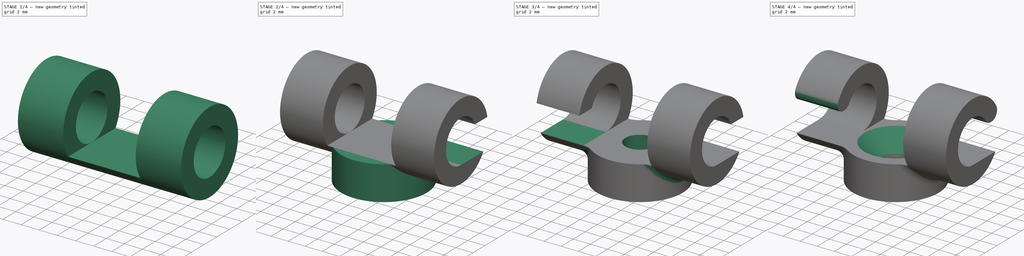
[diagram: build sequence overview — one tinted view per stage of 4, left to right]
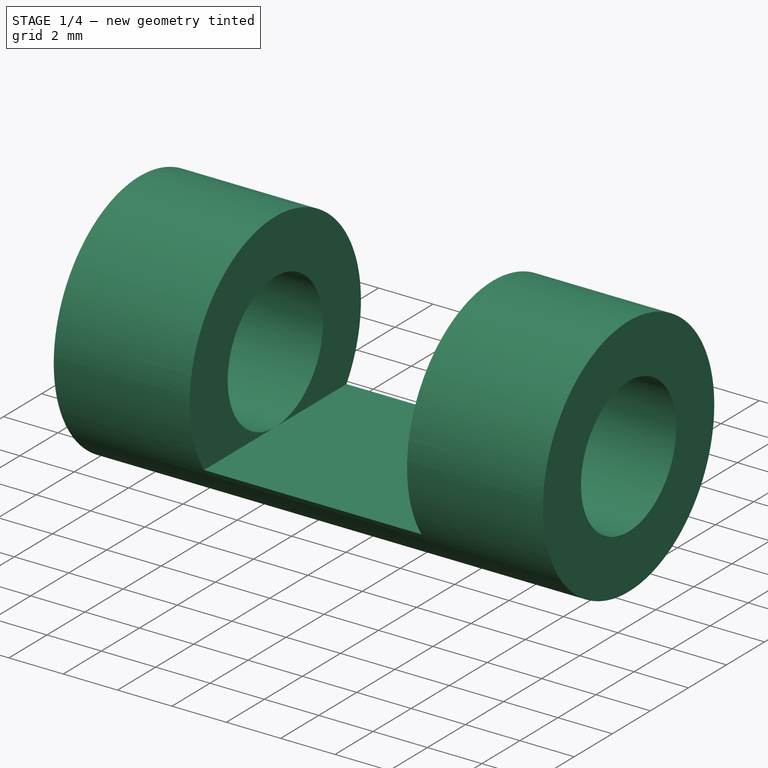
[diagram: stage 1 of 4 — iso view after this stage's code; geometry added in this stage tinted green]
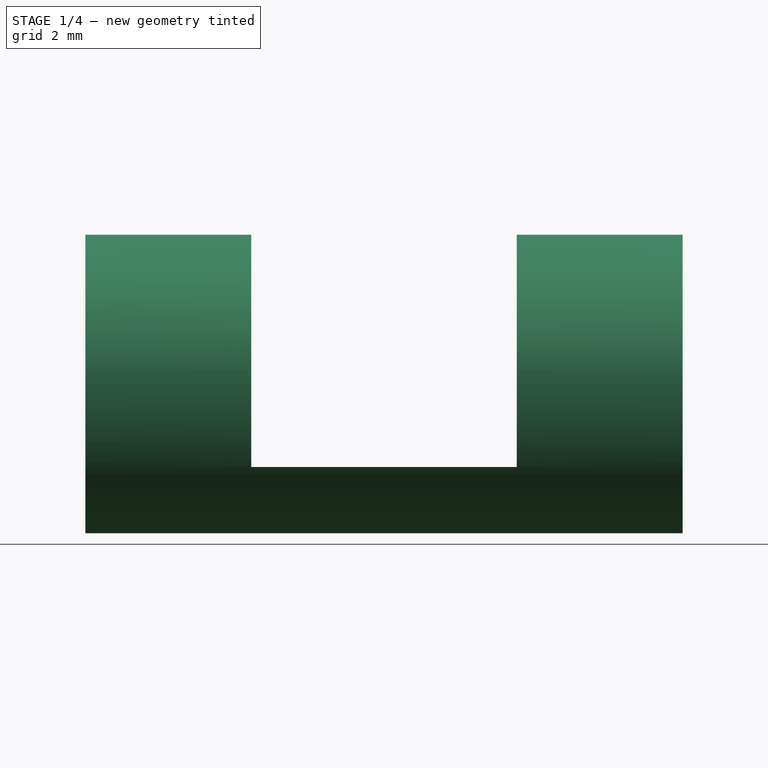
[diagram: stage 1 of 4 — front view after this stage's code; geometry added in this stage tinted green]
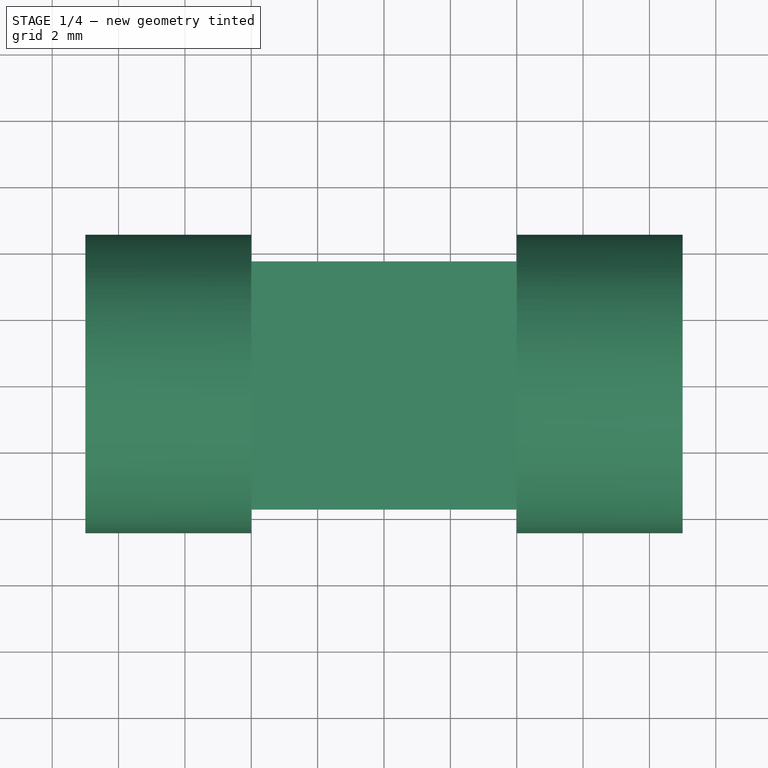
[diagram: stage 1 of 4 — top view after this stage's code; geometry added in this stage tinted green]
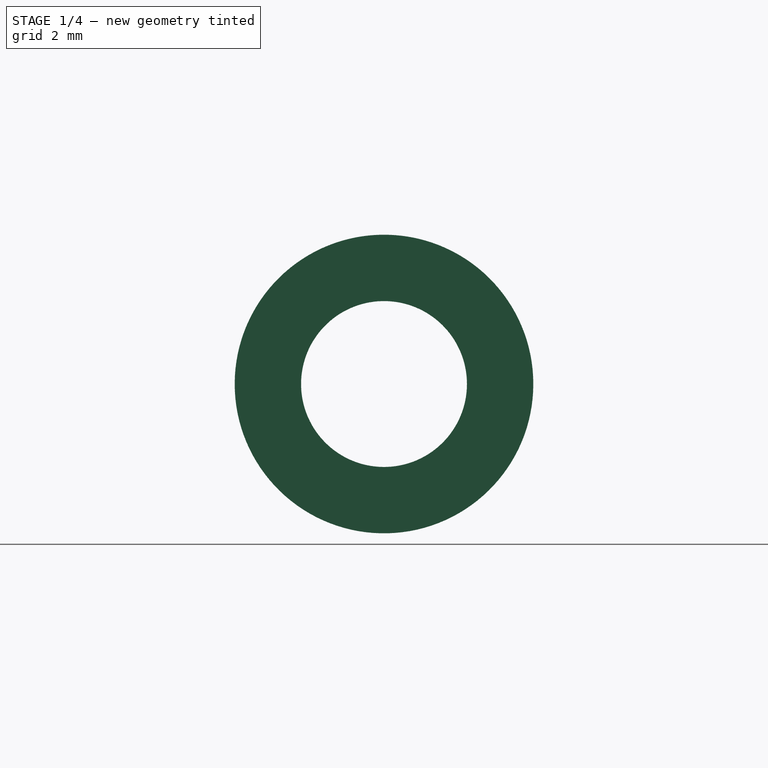
[diagram: stage 1 of 4 — right view after this stage's code; geometry added in this stage tinted green]
FCSTD DOCUMENT  (FreeCAD 0.17R13519 (Git))
Label: Schlauchhalter
License: All rights reserved
LicenseURL: http://en.wikipedia.org/wiki/All_rights_reserved
objects: Sketcher::SketchObject×5, PartDesign::Pocket×3, PartDesign::Pad×2, PartDesign::Fillet×2, Spreadsheet::Sheet×1, PartDesign::PolarPattern×1, PartDesign::Chamfer×1, PartDesign::Body×1, App::Part×1
note: 20 computed .brp shape members not serialized (recipe doc carries the construction recipe); baked Part::Feature solids carry a one-line shape summary decoded from their .brp

FEATURE [Spreadsheet::Sheet] Spreadsheet
  cells = A1(Materialdicke)=2; D1=Materialdicke; A2=5; B2(ARSchlauch)==A2 / 2; D2=Außenradius Schlauch; A3(Sockelhoehe)=4; D3=Sockelhöhe; A4(Mittenabstand)=8; D4=Mittenabstand; A5=3; B5(Schraubenradius)==A5 / 2; D5=Schraubenradius; A6=10; B6(Sockelradius)==A6 / 2; D6=Sockelradius; A7(Halterlaenge)=18; D7=Halterlänge
FEATURE [Sketcher::SketchObject] Sketch001  label="Rohr Sketch"
  MapMode = 5
  Placement = pos=(0,0,0) rot=(0.57735,0.57735,0.57735;2.0944rad)
  Support = -> [YZ_Plane001]
  expr: Constraints[4] = Spreadsheet.ARSchlauch
  expr: Constraints[2] = Spreadsheet.Materialdicke + Spreadsheet.ARSchlauch
  sketch-geometry (2):
    g0: Circle CenterX=0 CenterY=4.5 CenterZ=0 NormalX=0 NormalY=0 NormalZ=1 AngleXU=0 Radius=4.5
    g1: Circle CenterX=0 CenterY=4.5 CenterZ=0 NormalX=0 NormalY=0 NormalZ=1 AngleXU=0 Radius=2.5
  constraints (5):
    c: PointOnObject(g0,g-2)
    c: PointOnObject(g-1,g0)
    c: Radius(g0) = 4.5
    c: Coincident(g1,g0)
    c: Radius(g1) = 2.5
FEATURE [PartDesign::Pad] Pad001  label="Rohr"
  Length = 18
  Length2 = 100
  Midplane = true
  Placement = pos=(0,0,0) rot=(0.57735,0.57735,0.57735;2.0944rad)
  Profile = -> Sketch001
  Type = 0
  expr: Length = Spreadsheet.Halterlaenge
FEATURE [Sketcher::SketchObject] Sketch  label="Aussparung Mitte Sketch"
  MapMode = 5
  Placement = pos=(0,0,0) rot=(1,0,0;1.5708rad)
  Support = -> [XZ_Plane001]
  expr: Constraints[11] = Spreadsheet.Mittenabstand
  expr: Constraints[10] = 2 * Spreadsheet.ARSchlauch + Spreadsheet.Materialdicke
  expr: Constraints[9] = Spreadsheet.Materialdicke
  sketch-geometry (4):
    g0: LineSegment StartX=-4 StartY=9 StartZ=0 EndX=4 EndY=9 EndZ=0
    g1: LineSegment StartX=4 StartY=9 StartZ=0 EndX=4 EndY=2 EndZ=0
    g2: LineSegment StartX=4 StartY=2 StartZ=0 EndX=-4 EndY=2 EndZ=0
    g3: LineSegment StartX=-4 StartY=2 StartZ=0 EndX=-4 EndY=9 EndZ=0
  constraints (12):
    c: Coincident(g0,g1)
    c: Coincident(g1,g2)
    c: Coincident(g2,g3)
    c: Coincident(g3,g0)
    c: Horizontal(g0)
    c: Horizontal(g2)
    c: Vertical(g1)
    c: Vertical(g3)
    c: Symmetric(g0,g0,g-2)
    c: DistanceY(g-1,g1) = 2
    c: DistanceY(g1,g1) = 7
    c: DistanceX(g0,g0) = 8
FEATURE [Sketcher::SketchObject] Sketch004  label="Aussparung Seite Sketch"
  MapMode = 5
  Placement = pos=(9,-1e-12,1e-12) rot=(0.57735,0.57735,0.57735;2.0944rad)
  expr: Constraints[9] = Spreadsheet.ARSchlauch + Spreadsheet.Materialdicke
  sketch-geometry (4):
    g0: LineSegment StartX=0 StartY=5.4 StartZ=0 EndX=4.5 EndY=5.4 EndZ=0
    g1: LineSegment StartX=4.5 StartY=5.4 StartZ=0 EndX=4.5 EndY=2 EndZ=0
    g2: LineSegment StartX=4.5 StartY=2 StartZ=0 EndX=0 EndY=2 EndZ=0
    g3: LineSegment StartX=0 StartY=2 StartZ=0 EndX=0 EndY=5.4 EndZ=0
  constraints (10):
    c: Coincident(g0,g1)
    c: Coincident(g1,g2)
    c: Coincident(g2,g3)
    c: Coincident(g3,g0)
    c: Horizontal(g0)
    c: Horizontal(g2)
    c: Vertical(g1)
    c: Vertical(g3)
    c: DistanceY(g3,g3) = 3.4
    c: DistanceX(g0,g0) = 4.5
FEATURE [Sketcher::SketchObject] Sketch006  label="Schraubensockel Sketch"
  MapMode = 5
  Placement = pos=(0,0,2) rot=(0,0,-1;1.5708rad)
  expr: Constraints[1] = Spreadsheet.Sockelradius
  sketch-geometry (1):
    g0: Circle CenterX=0 CenterY=0 CenterZ=0 NormalX=0 NormalY=0 NormalZ=1 AngleXU=0 Radius=5
  constraints (2):
    c: Coincident(g0,g-1)
    c: Radius(g0) = 5
FEATURE [PartDesign::Pocket] Pocket  label="Aussparung Mitte"
  BaseFeature = -> Pad001
  Length = 9
  Length2 = 100
  Midplane = true
  Placement = pos=(0,0,0) rot=(0.57735,0.57735,0.57735;2.0944rad)
  Profile = -> Sketch
  Type = 0
  expr: Length = 2 * (Spreadsheet.ARSchlauch + Spreadsheet.Materialdicke)
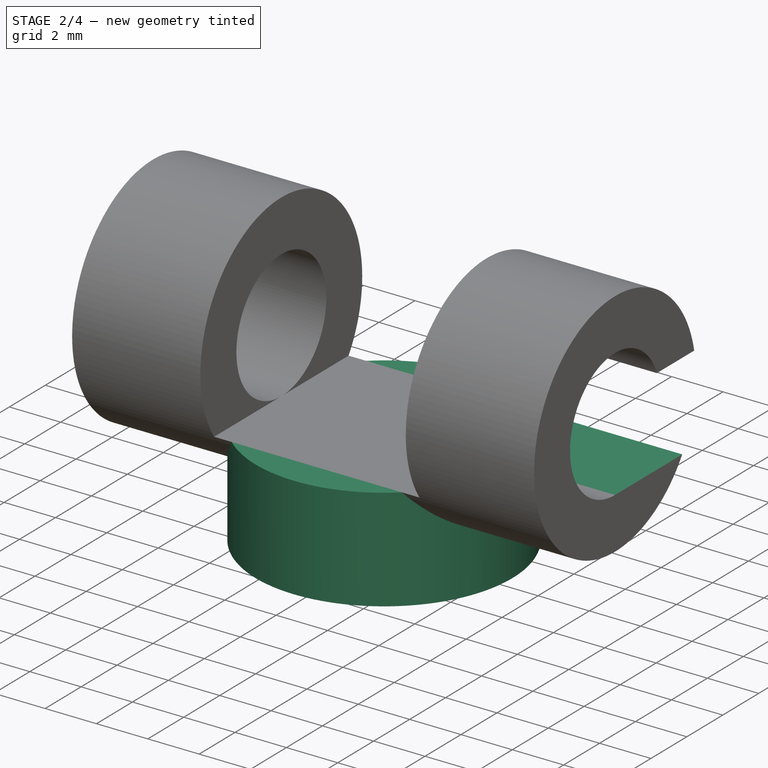
[diagram: stage 2 of 4 — iso view after this stage's code; geometry added in this stage tinted green]
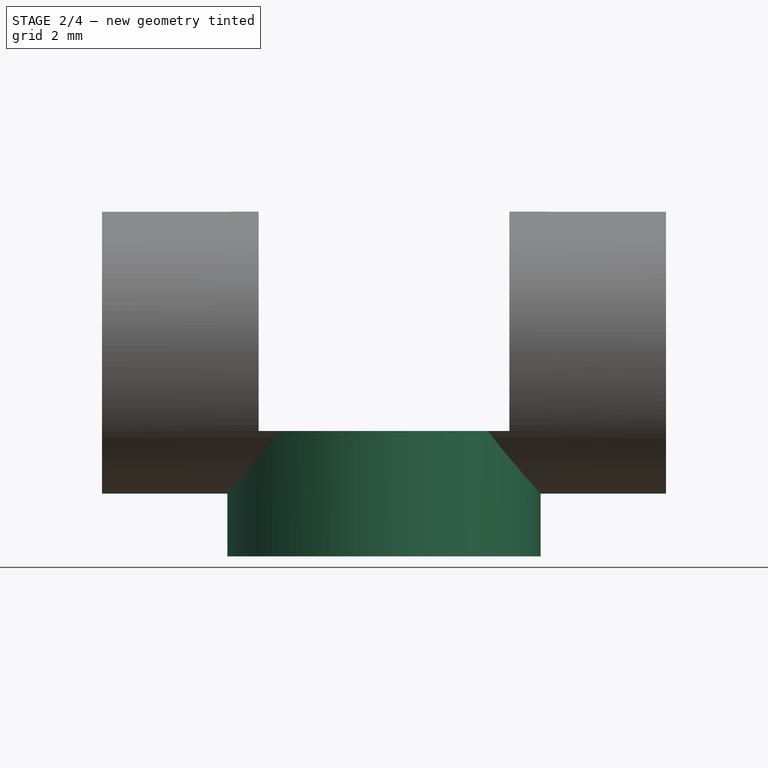
[diagram: stage 2 of 4 — front view after this stage's code; geometry added in this stage tinted green]
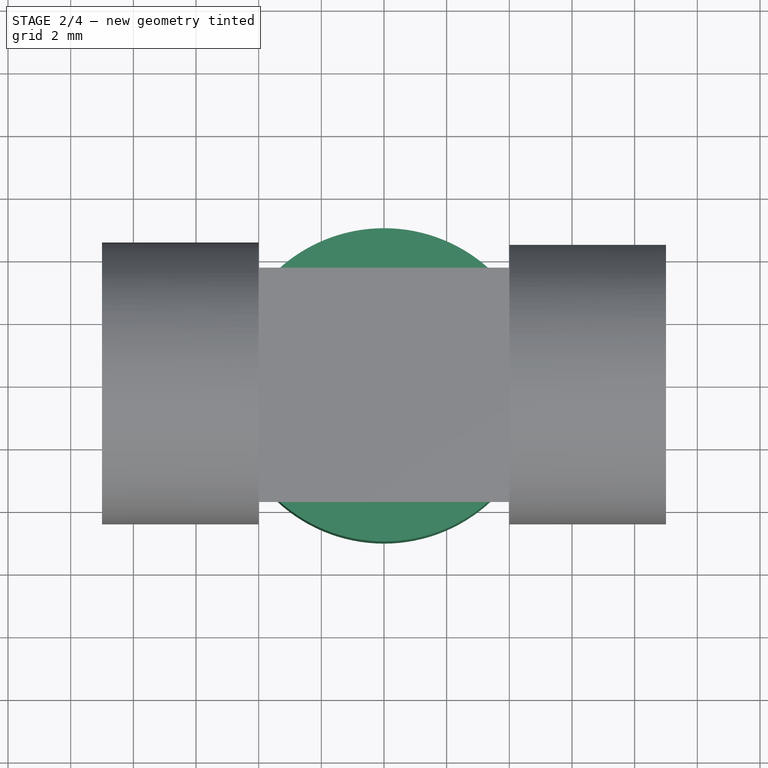
[diagram: stage 2 of 4 — top view after this stage's code; geometry added in this stage tinted green]
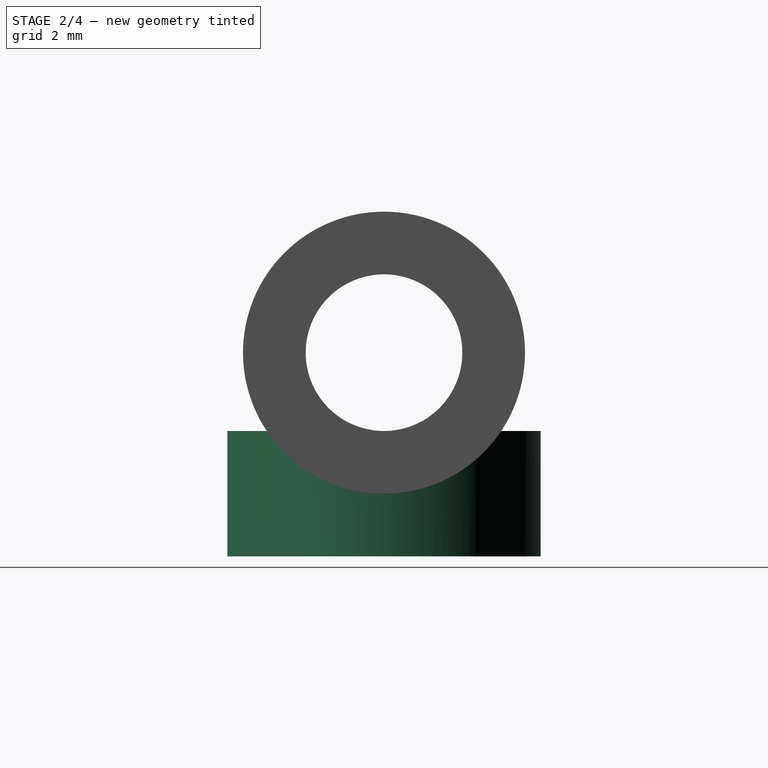
[diagram: stage 2 of 4 — right view after this stage's code; geometry added in this stage tinted green]
FEATURE [PartDesign::Pad] Pad  label="Schraubensockel"
  BaseFeature = -> Pocket
  Length = 4
  Length2 = 100
  Placement = pos=(0,0,0) rot=(0.57735,0.57735,0.57735;2.0944rad)
  Profile = -> Sketch006
  Reversed = true
  Type = 0
  expr: Length = Spreadsheet.Sockelhoehe
FEATURE [Sketcher::SketchObject] Sketch007  label="Schraubenloch Sketch"
  MapMode = 5
  Placement = pos=(0,0,2) rot=(0,0,-1;1.5708rad)
  Support = -> [Pad]
  expr: Constraints[1] = Spreadsheet.Schraubenradius + 0.20000000000000001
  sketch-geometry (1):
    g0: Circle CenterX=0 CenterY=0 CenterZ=0 NormalX=0 NormalY=0 NormalZ=1 AngleXU=0 Radius=1.7
  constraints (2):
    c: Coincident(g0,g-1)
    c: Radius(g0) = 1.7
FEATURE [PartDesign::Pocket] Pocket001  label="Aussparung Seite rechts"
  BaseFeature = -> Pad
  Length = 5
  Length2 = 100
  Placement = pos=(0,0,0) rot=(0.57735,0.57735,0.57735;2.0944rad)
  Profile = -> Sketch004
  Type = 0
  expr: Length = (Spreadsheet.Halterlaenge - Spreadsheet.Mittenabstand) / 2
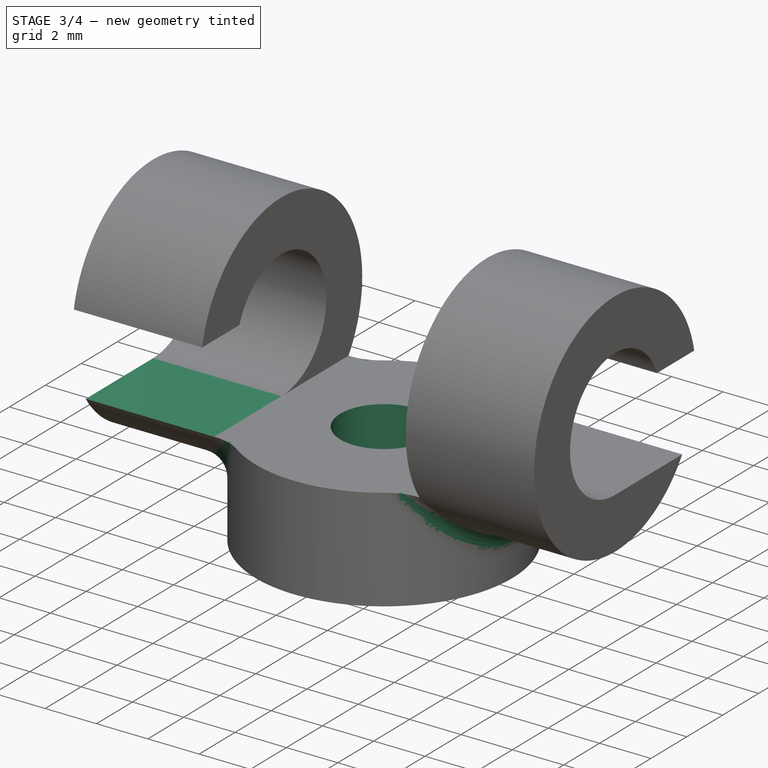
[diagram: stage 3 of 4 — iso view after this stage's code; geometry added in this stage tinted green]
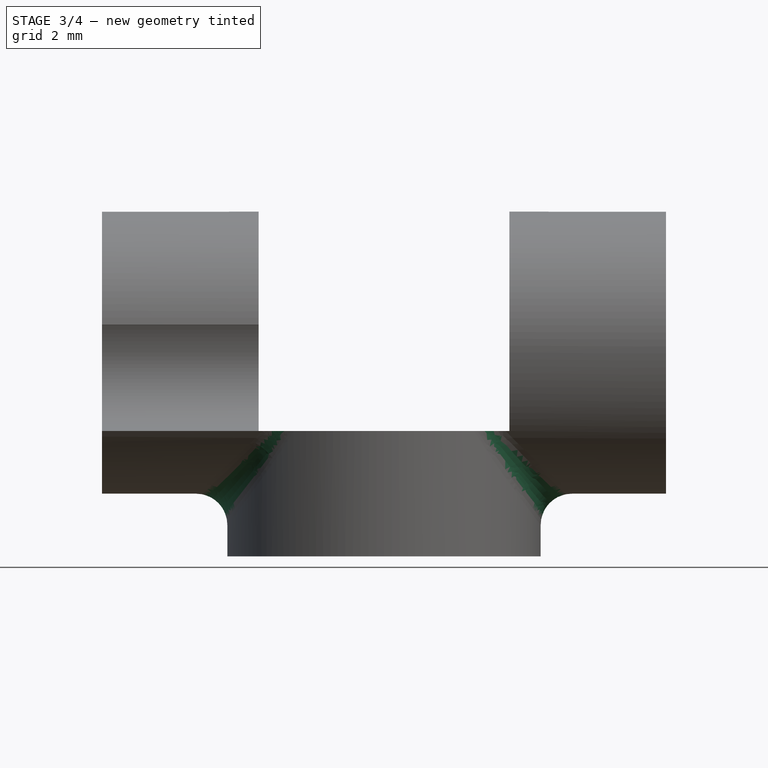
[diagram: stage 3 of 4 — front view after this stage's code; geometry added in this stage tinted green]
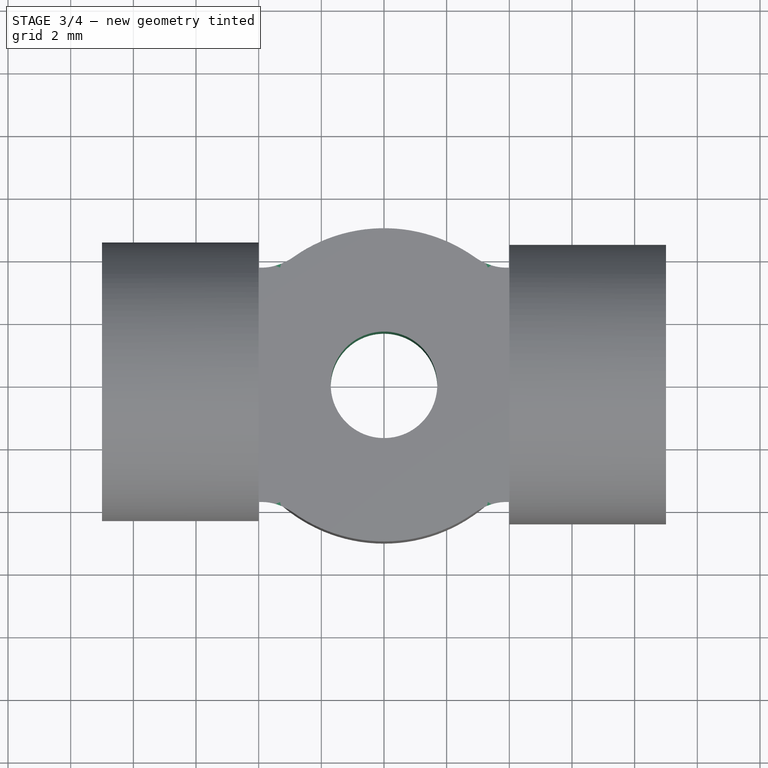
[diagram: stage 3 of 4 — top view after this stage's code; geometry added in this stage tinted green]
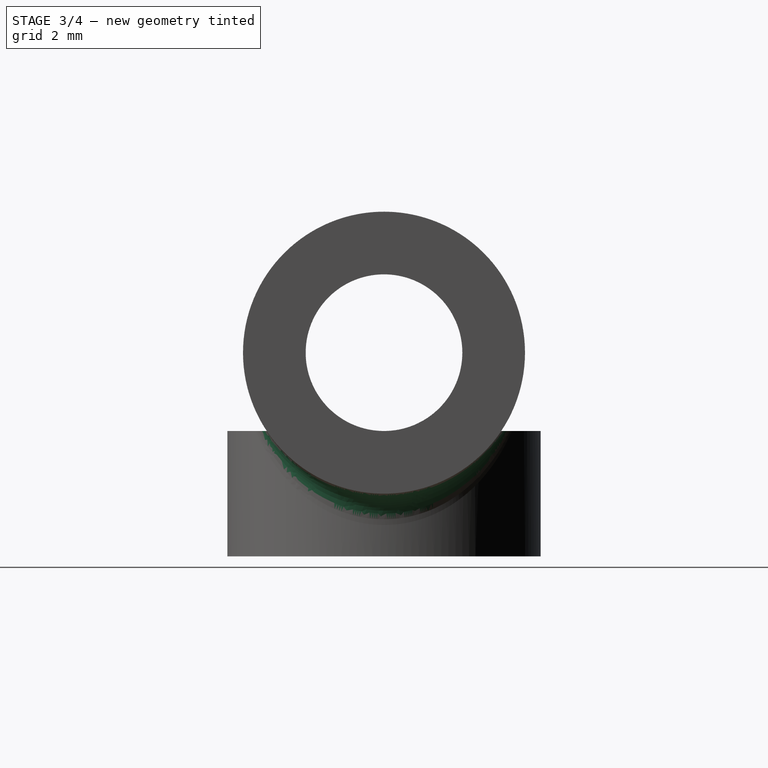
[diagram: stage 3 of 4 — right view after this stage's code; geometry added in this stage tinted green]
FEATURE [PartDesign::PolarPattern] PolarPattern  label="Aussparung Seite links"
  Angle = 360
  Axis = -> Z_Axis001
  BaseFeature = -> Pocket001
  Occurrences = 2
  Originals = -> [Pocket001]
  Placement = pos=(0,0,0) rot=(0.57735,0.57735,0.57735;2.0944rad)
FEATURE [PartDesign::Pocket] Pocket002  label="Schraubenloch"
  BaseFeature = -> PolarPattern
  Length = 4
  Length2 = 100
  Placement = pos=(0,0,0) rot=(0.57735,0.57735,0.57735;2.0944rad)
  Profile = -> Sketch007
  Type = 0
  expr: Length = Spreadsheet.Sockelhoehe
FEATURE [PartDesign::Fillet] Fillet
  Base = -> Pocket002 [Edge10,Edge29]
  BaseFeature = -> Pocket002
  Placement = pos=(0,0,0) rot=(0.57735,0.57735,0.57735;2.0944rad)
  Radius = 1
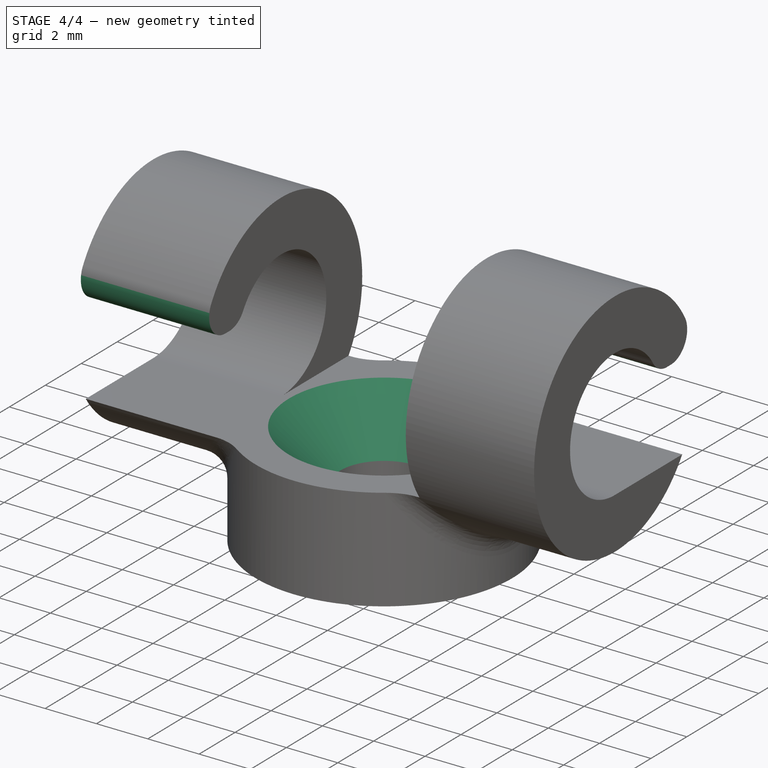
[diagram: stage 4 of 4 — iso view after this stage's code; geometry added in this stage tinted green]
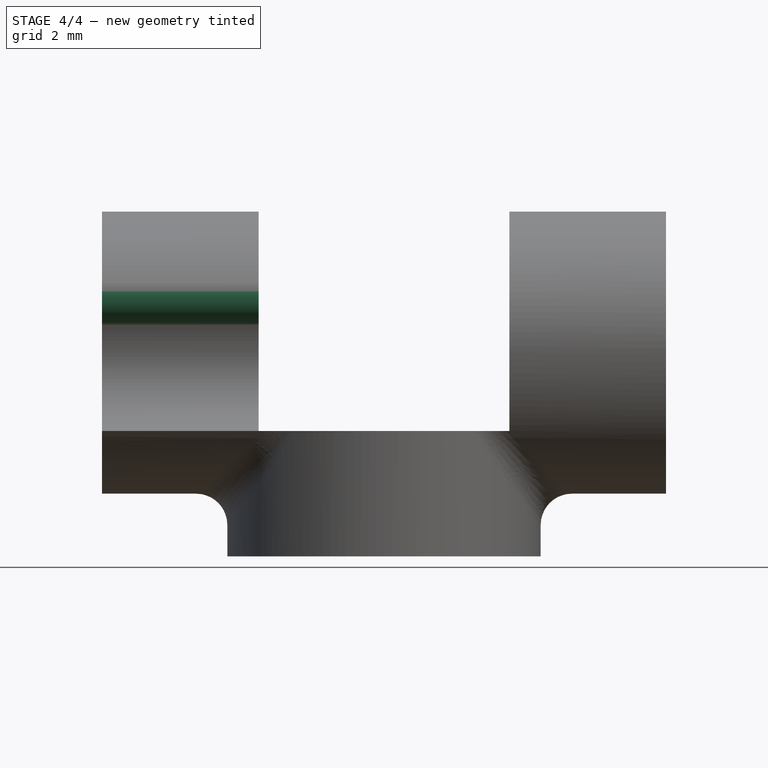
[diagram: stage 4 of 4 — front view after this stage's code; geometry added in this stage tinted green]
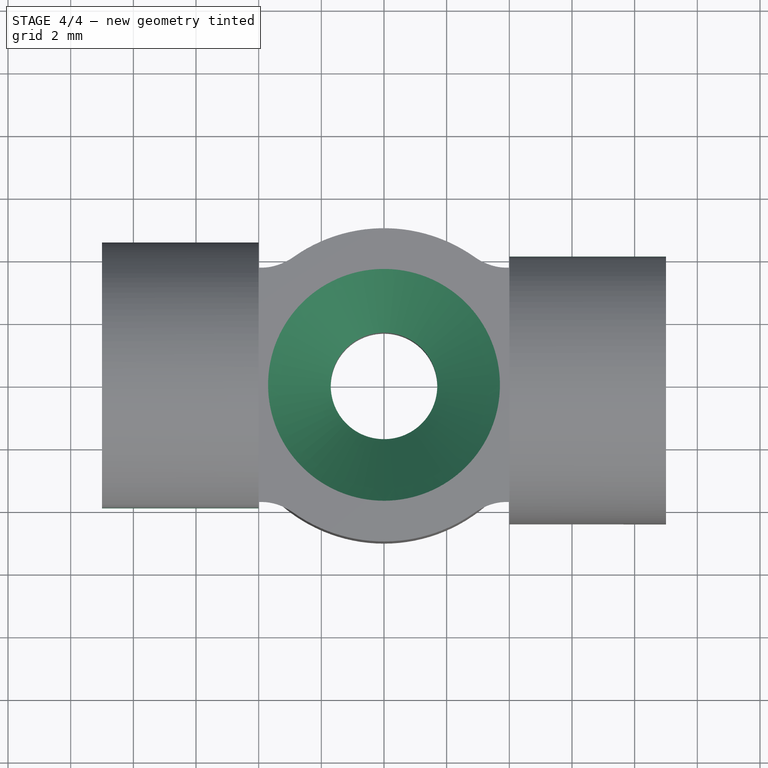
[diagram: stage 4 of 4 — top view after this stage's code; geometry added in this stage tinted green]
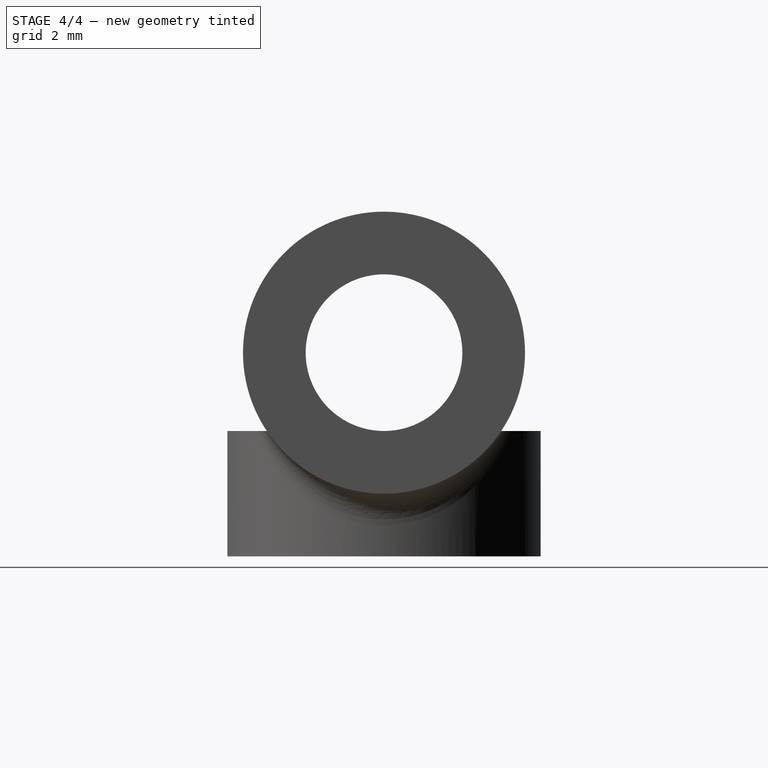
[diagram: stage 4 of 4 — right view after this stage's code; geometry added in this stage tinted green]
FEATURE [PartDesign::Chamfer] Chamfer
  Base = -> Fillet [Edge50]
  BaseFeature = -> Fillet
  Placement = pos=(0,0,0) rot=(0.57735,0.57735,0.57735;2.0944rad)
  Size = 2
FEATURE [PartDesign::Fillet] Fillet001
  Base = -> Chamfer [Edge65,Edge67,Edge77,Edge70]
  BaseFeature = -> Chamfer
  Placement = pos=(0,0,0) rot=(0.57735,0.57735,0.57735;2.0944rad)
  Radius = 0.9
  expr: Radius = 0.45000000000000001 * Spreadsheet.Materialdicke
FEATURE [PartDesign::Body] Body  label="Schraubenbasis"
  Group = -> [Sketch001,Pad001,Sketch,Pocket,Sketch004,Sketch006,Pad,Pocket001,PolarPattern,Sketch007,Pocket002,Fillet,Chamfer,Fillet001]
  Origin = -> Origin001
  Tip = -> Fillet001
FEATURE [App::Part] Part  label="Schlauchhalter"
  Group = -> [Body]
  License = CC BY 3.0
  LicenseURL = http://creativecommons.org/licenses/by/3.0/
  Origin = -> Origin
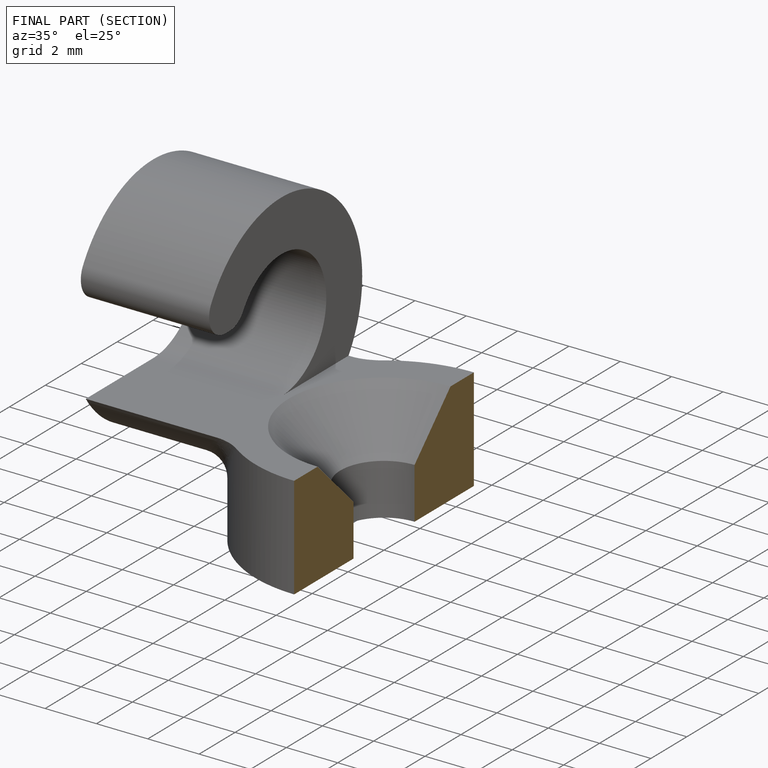
[diagram: finished part — half-section view (interior)]
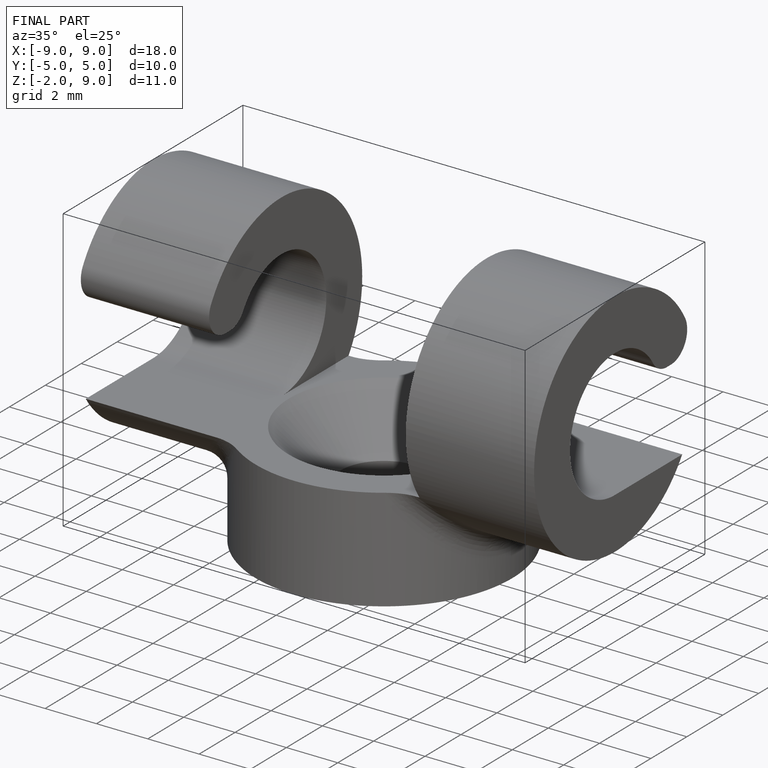
[diagram: finished part — iso view with bounding-box wireframe]
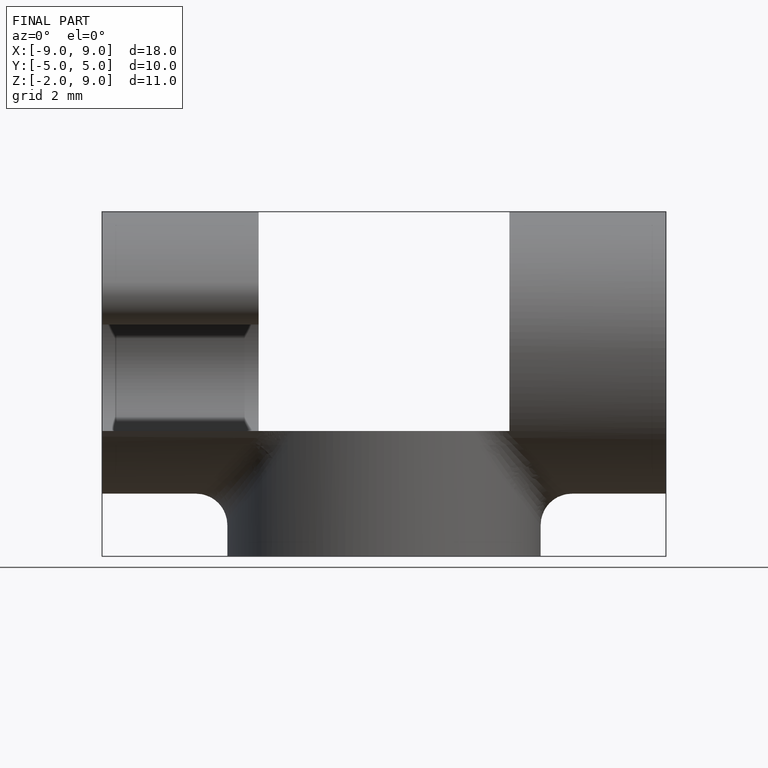
[diagram: finished part — front view with bounding-box wireframe]
